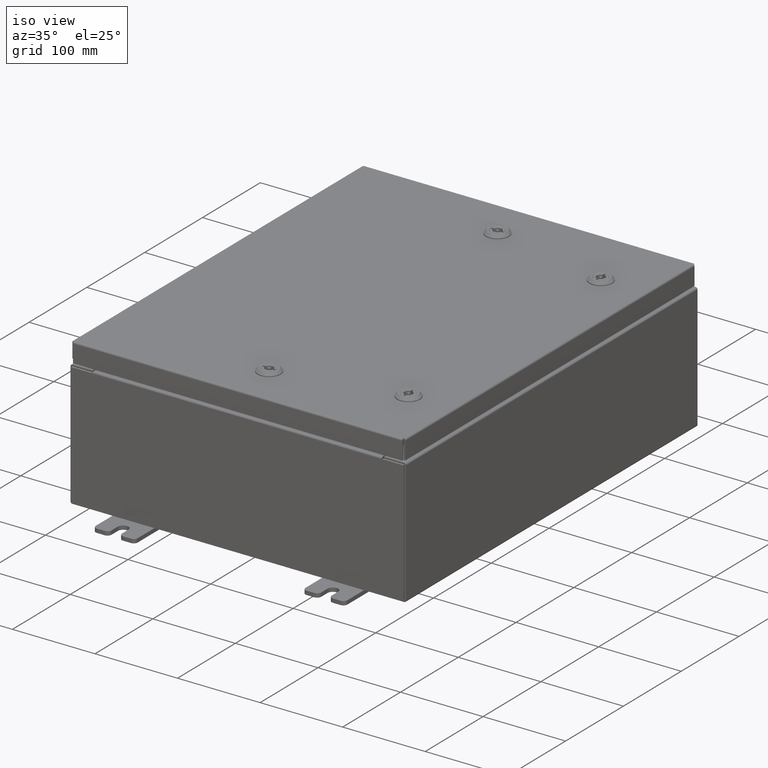
[diagram: clean part render]
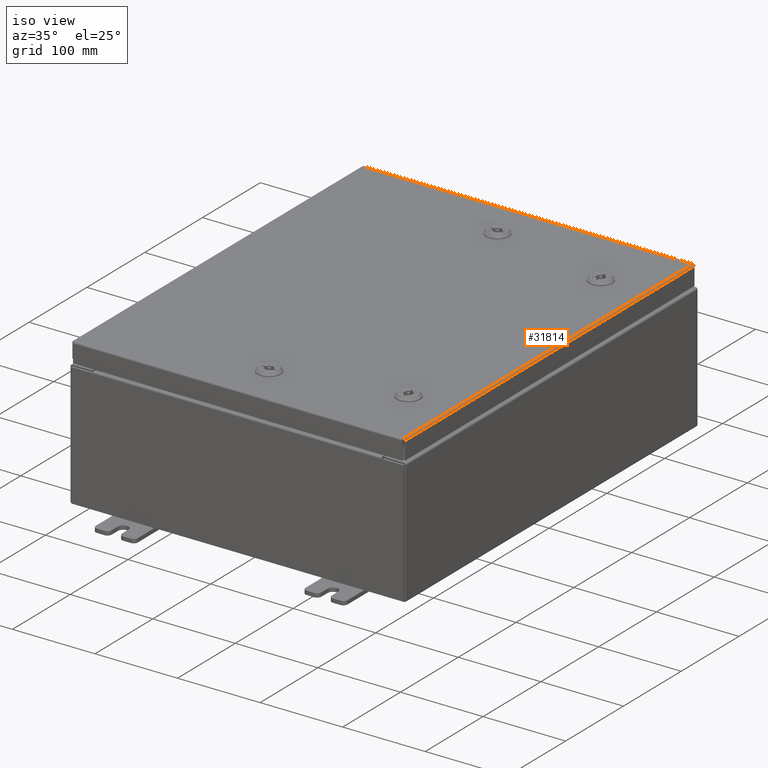
[diagram: same view with one face highlighted and labeled with its STEP entity id]
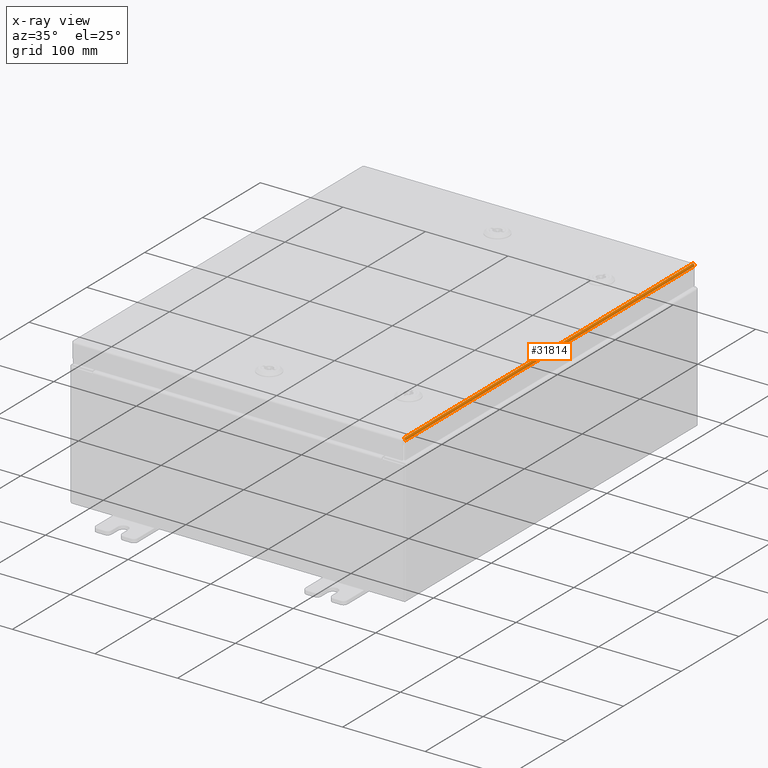
[diagram: x-ray of the same camera — body ghosted, the highlighted face saturated]
A machine part, iso view. The second image highlights one B-rep face of the part: STEP entity #31814.
The next image is the same camera in x-ray: the body ghosted, the highlighted face saturated — about 0% of this face is hidden behind the body in this view.
In plain terms, the highlighted cylindrical surface (edge-blend (fillet) strip) has radius 2.2276 mm, axis along (-0, -1, -0).
Its self-contained STEP definition (entity closure, byte-faithful):
#77 = CARTESIAN_POINT ( 'NONE',  ( 7.937500000000000000, -9.848657864376271200, -0.08769999999999997200 ) ) ;
#183 = CARTESIAN_POINT ( 'NONE',  ( 7.937499999999999100, -9.848753042344919000, -0.07622009684500727400 ) ) ;
#748 = CARTESIAN_POINT ( 'NONE',  ( 7.849800000000000100, -9.849800000000001900, -2.219626494852214000E-016 ) ) ;
#2513 = CARTESIAN_POINT ( 'NONE',  ( 7.849800000000000100, 9.849799999999996600, -2.048885995248197400E-016 ) ) ;
#2927 = CARTESIAN_POINT ( 'NONE',  ( 7.937500000000000000, 9.848657864376269400, -0.08769999999999997200 ) ) ;
#4078 = LINE ( 'NONE', #10122, #5606 ) ;
#4644 = ORIENTED_EDGE ( 'NONE', *, *, #50170, .F. ) ;
#5606 = VECTOR ( 'NONE', #44247, 39.37007874015748100 ) ;
#5973 = CYLINDRICAL_SURFACE ( 'NONE', #41029, 0.08770000000000026400 ) ;
#7940 = VERTEX_POINT ( 'NONE', #55214 ) ;
#10120 = CARTESIAN_POINT ( 'NONE',  ( 7.926431066258667900, -9.849038576250846300, -0.04353261542147220100 ) ) ;
#10122 = CARTESIAN_POINT ( 'NONE',  ( 7.937500000000000000, 0.0000000000000000000, -0.08769999999999997200 ) ) ;
#13627 = CARTESIAN_POINT ( 'NONE',  ( 7.849800000000000100, -9.849800000000001900, -2.219626494852214000E-016 ) ) ;
#14982 = CARTESIAN_POINT ( 'NONE',  ( 7.903695747341800800, -9.849324110156784300, -0.01756921792167976200 ) ) ;
#17326 = DIRECTION ( 'NONE',  ( -0.0000000000000000000, -1.000000000000000000, -0.0000000000000000000 ) ) ;
#17474 = CARTESIAN_POINT ( 'NONE',  ( 7.872755289458310400, 9.849609644062715200, -0.002282596256188945100 ) ) ;
#18153 = VERTEX_POINT ( 'NONE', #59050 ) ;
#19900 = CARTESIAN_POINT ( 'NONE',  ( 7.872755289458309500, -9.849609644062715200, -0.002282596256188945500 ) ) ;
#21006 = VECTOR ( 'NONE', #47930, 39.37007874015748100 ) ;
#22038 = FACE_OUTER_BOUND ( 'NONE', #56409, .T. ) ;
#22403 = CARTESIAN_POINT ( 'NONE',  ( 7.903695747341801700, 9.849324110156780800, -0.01756921792167975800 ) ) ;
#24817 = CARTESIAN_POINT ( 'NONE',  ( 7.849800000000000100, -9.849800000000001900, -2.219626494852214000E-016 ) ) ;
#26737 = DIRECTION ( 'NONE',  ( 1.000000000000000000, 0.0000000000000000000, 3.893740013774593800E-015 ) ) ;
#27322 = CARTESIAN_POINT ( 'NONE',  ( 7.926431066258668800, 9.849038576250844600, -0.04353261542147220100 ) ) ;
#27494 = ORIENTED_EDGE ( 'NONE', *, *, #61416, .F. ) ;
#31814 = ADVANCED_FACE ( 'NONE', ( #22038 ), #5973, .T. ) ;
#32275 = CARTESIAN_POINT ( 'NONE',  ( 7.937500000000000000, 9.848753042344911900, -0.07622009684500730100 ) ) ;
#34912 = B_SPLINE_CURVE_WITH_KNOTS ( 'NONE', 3,
 ( #39174, #183, #39380, #10120, #44244, #14982, #49093, #19900, #53929, #24817 ),
 .UNSPECIFIED., .F., .F.,
 ( 4, 2, 2, 2, 4 ),
 ( 0.0000000000000000000, 0.2500000000000000000, 0.5000000000000000000, 0.7500000000000000000, 1.000000000000000000 ),
 .UNSPECIFIED. ) ;
#36553 = CARTESIAN_POINT ( 'NONE',  ( 7.861279903154991400, 9.849704822031352300, -2.229964298539175300E-016 ) ) ;
#39174 = CARTESIAN_POINT ( 'NONE',  ( 7.937500000000000000, -9.848657864376271200, -0.08769999999999997200 ) ) ;
#39380 = CARTESIAN_POINT ( 'NONE',  ( 7.935217403743812300, -9.848848220313563200, -0.06474471054169114700 ) ) ;
#40417 = VERTEX_POINT ( 'NONE', #748 ) ;
#40995 = EDGE_CURVE ( 'NONE', #7940, #61590, #4078, .T. ) ;
#41029 = AXIS2_PLACEMENT_3D ( 'NONE', #41485, #17326, #26737 ) ;
#41485 = CARTESIAN_POINT ( 'NONE',  ( 7.849800000000000100, -9.849800000000001900, -0.08770000000000031900 ) ) ;
#44244 = CARTESIAN_POINT ( 'NONE',  ( 7.919930782078321100, -9.849133754219492300, -0.03380425265820006400 ) ) ;
#44247 = DIRECTION ( 'NONE',  ( 0.0000000000000000000, -1.000000000000000000, 0.0000000000000000000 ) ) ;
#47930 = DIRECTION ( 'NONE',  ( 0.0000000000000000000, 1.000000000000000000, 0.0000000000000000000 ) ) ;
#48462 = LINE ( 'NONE', #13627, #21006 ) ;
#49093 = CARTESIAN_POINT ( 'NONE',  ( 7.893967384578529000, -9.849419288125425000, -0.01106893374133177300 ) ) ;
#50170 = EDGE_CURVE ( 'NONE', #61590, #40417, #34912, .T. ) ;
#51581 = CARTESIAN_POINT ( 'NONE',  ( 7.893967384578527200, 9.849419288125419700, -0.01106893374133177300 ) ) ;
#52068 = ORIENTED_EDGE ( 'NONE', *, *, #56647, .F. ) ;
#52306 = B_SPLINE_CURVE_WITH_KNOTS ( 'NONE', 3,
 ( #2513, #36553, #17474, #51581, #22403, #56415, #27322, #61228, #32275, #2927 ),
 .UNSPECIFIED., .F., .F.,
 ( 4, 2, 2, 2, 4 ),
 ( 0.0000000000000000000, 0.2500000000000000000, 0.5000000000000000000, 0.7500000000000000000, 1.000000000000000000 ),
 .UNSPECIFIED. ) ;
#53929 = CARTESIAN_POINT ( 'NONE',  ( 7.861279903154993100, -9.849704822031359400, -2.224295180388261000E-016 ) ) ;
#54020 = ORIENTED_EDGE ( 'NONE', *, *, #40995, .F. ) ;
#55214 = CARTESIAN_POINT ( 'NONE',  ( 7.937500000000000000, 9.848657864376269400, -0.08769999999999997200 ) ) ;
#56409 = EDGE_LOOP ( 'NONE', ( #27494, #4644, #54020, #52068 ) ) ;
#56415 = CARTESIAN_POINT ( 'NONE',  ( 7.919930782078321100, 9.849133754219492300, -0.03380425265820006400 ) ) ;
#56647 = EDGE_CURVE ( 'NONE', #18153, #7940, #52306, .T. ) ;
#59050 = CARTESIAN_POINT ( 'NONE',  ( 7.849800000000000100, 9.849799999999996600, -2.048885995248197400E-016 ) ) ;
#61228 = CARTESIAN_POINT ( 'NONE',  ( 7.935217403743813200, 9.848848220313561400, -0.06474471054169114700 ) ) ;
#61416 = EDGE_CURVE ( 'NONE', #40417, #18153, #48462, .T. ) ;
#61590 = VERTEX_POINT ( 'NONE', #77 ) ;